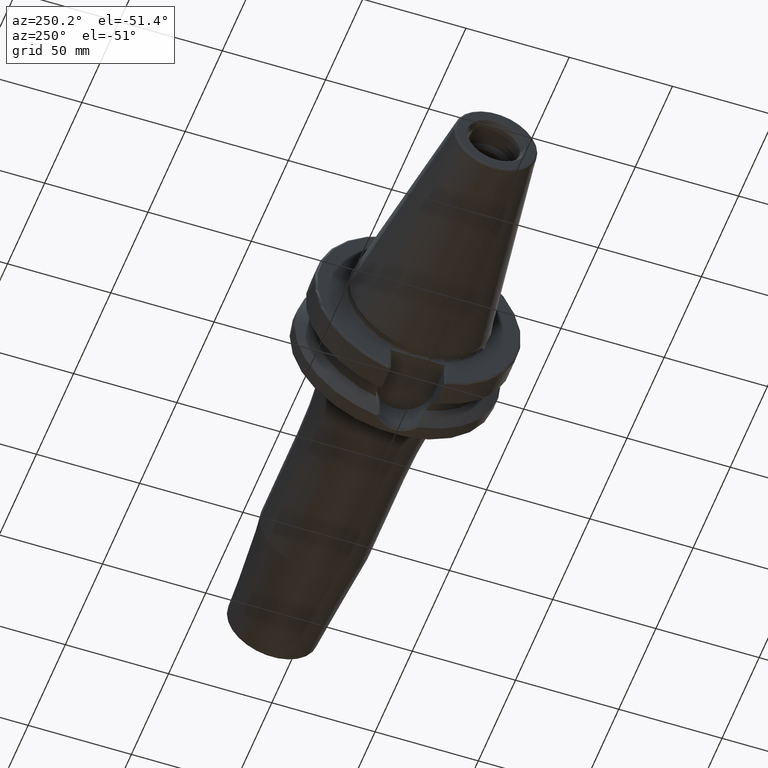
[diagram: clean part render]
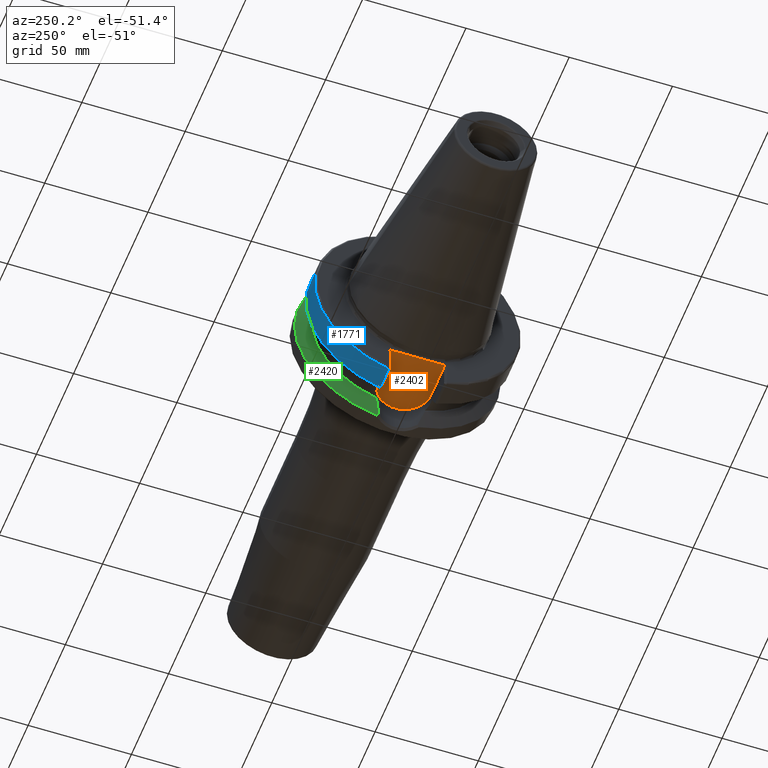
[diagram: same view with three faces highlighted in distinct colors, each labeled with its STEP entity id]
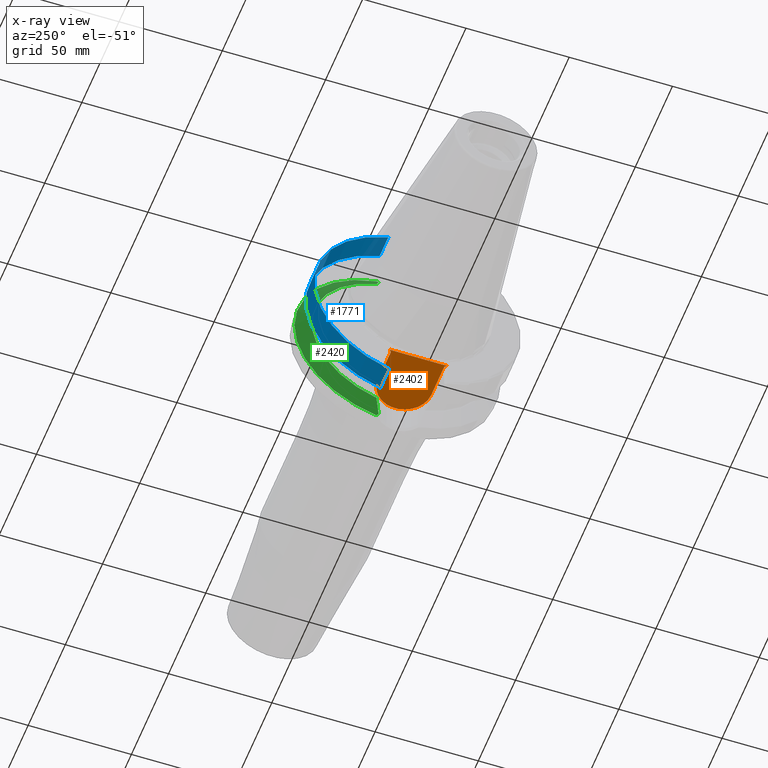
[diagram: x-ray of the same camera — body ghosted, the three highlighted faces saturated]
A machine part, auxiliary view with three faces highlighted in distinct colors.
The next image is the same camera in x-ray (body ghosted, the three faces saturated) — at least one of them is partly hidden behind the body in this view.
Their STEP definitions:

[orange] entity #2402 — the highlighted planar face has unit normal (0, 0, 1).
#116=CARTESIAN_POINT('',(3.E0,5.151759408202E0,-3.52E1));
#117=CARTESIAN_POINT('',(3.E0,4.661054534870E0,-3.52E1));
#118=CARTESIAN_POINT('',(2.985185415827E0,3.679726334622E0,-3.52E1));
#119=CARTESIAN_POINT('',(2.950323079572E0,2.207949548567E0,-3.52E1));
#120=CARTESIAN_POINT('',(2.926055980585E0,7.360772187789E-1,-3.52E1));
#121=CARTESIAN_POINT('',(2.926055295134E0,-7.360096390892E-1,-3.52E1));
#122=CARTESIAN_POINT('',(2.950321957577E0,-2.207902449886E0,-3.52E1));
#123=CARTESIAN_POINT('',(2.985185074233E0,-3.679708044781E0,-3.52E1));
#124=CARTESIAN_POINT('',(3.E0,-4.661048861242E0,-3.52E1));
#125=CARTESIAN_POINT('',(3.E0,-5.151759408202E0,-3.52E1));
#147=DIRECTION('',(7.071067811865E-1,-7.071067811865E-1,0.E0));
#148=VECTOR('',#147,1.414213562373E0);
#149=CARTESIAN_POINT('',(3.E0,1.39025E1,-3.52E1));
#150=LINE('',#149,#148);
#733=DIRECTION('',(-7.071067811865E-1,-7.071067811865E-1,0.E0));
#734=VECTOR('',#733,1.414213562373E0);
#735=CARTESIAN_POINT('',(4.E0,-1.29025E1,-3.52E1));
#736=LINE('',#735,#734);
#737=DIRECTION('',(-1.E0,0.E0,0.E0));
#738=VECTOR('',#737,1.73475E1);
#739=CARTESIAN_POINT('',(2.13475E1,1.29025E1,-3.52E1));
#740=LINE('',#739,#738);
#741=DIRECTION('',(0.E0,-1.E0,0.E0));
#742=VECTOR('',#741,8.750740591798E0);
#743=CARTESIAN_POINT('',(3.E0,1.39025E1,-3.52E1));
#744=LINE('',#743,#742);
#745=DIRECTION('',(0.E0,-1.E0,0.E0));
#746=VECTOR('',#745,8.750740591798E0);
#747=CARTESIAN_POINT('',(3.E0,-5.151759408202E0,-3.52E1));
#748=LINE('',#747,#746);
#749=DIRECTION('',(1.E0,0.E0,0.E0));
#750=VECTOR('',#749,1.73475E1);
#751=CARTESIAN_POINT('',(4.E0,-1.29025E1,-3.52E1));
#752=LINE('',#751,#750);
#753=CARTESIAN_POINT('',(2.13475E1,0.E0,-3.52E1));
#754=DIRECTION('',(0.E0,0.E0,1.E0));
#755=DIRECTION('',(0.E0,-1.E0,0.E0));
#756=AXIS2_PLACEMENT_3D('',#753,#754,#755);
#1334=CARTESIAN_POINT('',(2.13475E1,-1.29025E1,-3.52E1));
#1335=CARTESIAN_POINT('',(2.13475E1,1.29025E1,-3.52E1));
#1336=VERTEX_POINT('',#1334);
#1337=VERTEX_POINT('',#1335);
#1338=CARTESIAN_POINT('',(3.E0,5.151759408202E0,-3.52E1));
#1339=VERTEX_POINT('',#1338);
#1340=CARTESIAN_POINT('',(3.E0,-5.151759408202E0,-3.52E1));
#1341=VERTEX_POINT('',#1340);
#1387=CARTESIAN_POINT('',(4.E0,1.29025E1,-3.52E1));
#1389=VERTEX_POINT('',#1387);
#1391=CARTESIAN_POINT('',(3.E0,1.39025E1,-3.52E1));
#1393=VERTEX_POINT('',#1391);
#1397=CARTESIAN_POINT('',(3.E0,-1.39025E1,-3.52E1));
#1398=VERTEX_POINT('',#1397);
#1399=CARTESIAN_POINT('',(4.E0,-1.29025E1,-3.52E1));
#1401=VERTEX_POINT('',#1399);
#2387=CARTESIAN_POINT('',(0.E0,0.E0,-3.52E1));
#2388=DIRECTION('',(0.E0,0.E0,1.E0));
#2389=DIRECTION('',(1.E0,0.E0,0.E0));
#2390=AXIS2_PLACEMENT_3D('',#2387,#2388,#2389);
#2391=PLANE('',#2390);
#2392=ORIENTED_EDGE('',*,*,#1663,.T.);
#2393=ORIENTED_EDGE('',*,*,#1644,.F.);
#2394=ORIENTED_EDGE('',*,*,#1608,.T.);
#2395=ORIENTED_EDGE('',*,*,#1587,.T.);
#2396=ORIENTED_EDGE('',*,*,#1620,.T.);
#2397=ORIENTED_EDGE('',*,*,#2382,.F.);
#2398=ORIENTED_EDGE('',*,*,#1818,.T.);
#2399=ORIENTED_EDGE('',*,*,#1912,.T.);
#2400=EDGE_LOOP('',(#2392,#2393,#2394,#2395,#2396,#2397,#2398,#2399));
#2401=FACE_OUTER_BOUND('',#2400,.F.);
#2402=ADVANCED_FACE('',(#2401),#2391,.F.);
#126=B_SPLINE_CURVE_WITH_KNOTS('',3,(#116,#117,#118,#119,#120,#121,#122,#123,
#124,#125),.UNSPECIFIED.,.F.,.F.,(4,1,1,1,1,1,1,4),(0.E0,1.428571428571E-1,
2.857142857143E-1,4.285714285714E-1,5.714285714286E-1,7.142857142857E-1,
8.571428571429E-1,1.E0),.UNSPECIFIED.);
#757=CIRCLE('',#756,1.29025E1);
#1587=EDGE_CURVE('',#1339,#1341,#126,.T.);
#1608=EDGE_CURVE('',#1393,#1339,#744,.T.);
#1620=EDGE_CURVE('',#1341,#1398,#748,.T.);
#1644=EDGE_CURVE('',#1393,#1389,#150,.T.);
#1663=EDGE_CURVE('',#1337,#1389,#740,.T.);
#1818=EDGE_CURVE('',#1401,#1336,#752,.T.);
#1912=EDGE_CURVE('',#1336,#1337,#757,.T.);
#2382=EDGE_CURVE('',#1401,#1398,#736,.T.);

[blue] entity #1771 — the highlighted cylindrical surface (partial cylindrical patch) has radius 49.9875 mm, axis along (1, 0, 0).
#227=CARTESIAN_POINT('',(4.E0,0.E0,0.E0));
#228=DIRECTION('',(-1.E0,0.E0,0.E0));
#229=DIRECTION('',(0.E0,2.837968869610E-1,9.588844179312E-1));
#230=AXIS2_PLACEMENT_3D('',#227,#228,#229);
#232=DIRECTION('',(-1.E0,-7.302338022926E-8,-9.708531933347E-8));
#233=VECTOR('',#232,1.166933176412E1);
#234=CARTESIAN_POINT('',(1.566933176383E1,1.386327333875E1,-4.802665727057E1));
#235=LINE('',#234,#233);
#236=CARTESIAN_POINT('',(1.566933176383E1,0.E0,0.E0));
#237=DIRECTION('',(1.E0,0.E0,0.E0));
#238=DIRECTION('',(0.E0,2.773348004750E-1,-9.607733387462E-1));
#239=AXIS2_PLACEMENT_3D('',#236,#237,#238);
#241=DIRECTION('',(9.999999999989E-1,8.887251737038E-7,-1.189757232592E-6));
#242=VECTOR('',#241,1.166933177277E1);
#243=CARTESIAN_POINT('',(3.999999991073E0,1.418628651613E1,4.793224872501E1));
#244=LINE('',#243,#242);
#571=CARTESIAN_POINT('',(3.999999999701E0,1.386327248661E1,-4.802665840350E1));
#1362=CARTESIAN_POINT('',(1.566933176383E1,1.386327333875E1,-4.802665727057E1));
#1363=CARTESIAN_POINT('',(1.566933176383E1,1.418629688696E1,4.793223484134E1));
#1364=VERTEX_POINT('',#1362);
#1365=VERTEX_POINT('',#1363);
#1377=CARTESIAN_POINT('',(4.E0,1.418631682991E1,4.793222893890E1));
#1379=VERTEX_POINT('',#1377);
#1394=VERTEX_POINT('',#571);
#1757=CARTESIAN_POINT('',(-1.0879E2,0.E0,0.E0));
#1758=DIRECTION('',(1.E0,0.E0,0.E0));
#1759=DIRECTION('',(0.E0,-1.E0,0.E0));
#1760=AXIS2_PLACEMENT_3D('',#1757,#1758,#1759);
#1761=CYLINDRICAL_SURFACE('',#1760,4.99875E1);
#1763=ORIENTED_EDGE('',*,*,#1762,.T.);
#1765=ORIENTED_EDGE('',*,*,#1764,.F.);
#1766=ORIENTED_EDGE('',*,*,#1710,.T.);
#1768=ORIENTED_EDGE('',*,*,#1767,.F.);
#1769=EDGE_LOOP('',(#1763,#1765,#1766,#1768));
#1770=FACE_OUTER_BOUND('',#1769,.F.);
#1771=ADVANCED_FACE('',(#1770),#1761,.T.);
#231=CIRCLE('',#230,4.99875E1);
#240=CIRCLE('',#239,4.99875E1);
#1710=EDGE_CURVE('',#1364,#1365,#240,.T.);
#1762=EDGE_CURVE('',#1379,#1394,#231,.T.);
#1764=EDGE_CURVE('',#1364,#1394,#235,.T.);
#1767=EDGE_CURVE('',#1379,#1365,#244,.T.);

[green] entity #2420 — the highlighted conical surface has half-angle 60 deg.
#263=CARTESIAN_POINT('',(3.073066823617E1,0.E0,0.E0));
#264=DIRECTION('',(1.E0,0.E0,0.E0));
#265=DIRECTION('',(0.E0,2.049238320147E-1,-9.787779232657E-1));
#266=AXIS2_PLACEMENT_3D('',#263,#264,#265);
#415=CARTESIAN_POINT('',(2.67375E1,1.172273032403E1,-4.144514217760E1));
#416=CARTESIAN_POINT('',(2.717755273188E1,1.152039825981E1,-4.229446795287E1));
#417=CARTESIAN_POINT('',(2.801804260532E1,1.107404406164E1,-4.392046244152E1));
#418=CARTESIAN_POINT('',(2.916093120674E1,1.029757215552E1,-4.613906421021E1));
#419=CARTESIAN_POINT('',(2.984177307163E1,9.721843848552E0,-4.746425084782E1));
#420=CARTESIAN_POINT('',(3.016210355788E1,9.422169090361E0,-4.808834590435E1));
#485=CARTESIAN_POINT('',(3.006745596523E1,9.509830398822E0,4.790396451831E1));
#486=CARTESIAN_POINT('',(2.975376574683E1,9.797465906135E0,4.729293338983E1));
#487=CARTESIAN_POINT('',(2.908879078217E1,1.035010846105E1,4.599889189585E1));
#488=CARTESIAN_POINT('',(2.797778721927E1,1.109635283633E1,4.384252820130E1));
#489=CARTESIAN_POINT('',(2.716331106798E1,1.152694644153E1,4.226698076473E1));
#490=CARTESIAN_POINT('',(2.67375E1,1.172273032403E1,4.144514217760E1));
#758=CARTESIAN_POINT('',(2.67375E1,0.E0,0.E0));
#759=DIRECTION('',(-1.E0,0.E0,0.E0));
#760=DIRECTION('',(0.E0,2.721714149834E-1,9.622487832499E-1));
#761=AXIS2_PLACEMENT_3D('',#758,#759,#760);
#775=CARTESIAN_POINT('',(3.016210355788E1,9.422169090361E0,-4.808834590435E1));
#776=CARTESIAN_POINT('',(3.022394586618E1,9.512142137117E0,-4.817986780383E1));
#777=CARTESIAN_POINT('',(3.034851502566E1,9.692953240337E0,-4.836399151813E1));
#778=CARTESIAN_POINT('',(3.053803725886E1,9.966778365933E0,-4.864343348084E1));
#779=CARTESIAN_POINT('',(3.066616050581E1,1.015105667945E1,-4.883189001679E1));
#780=CARTESIAN_POINT('',(3.073066823617E1,1.024363005283E1,-4.892666143925E1));
#782=CARTESIAN_POINT('',(3.073066823617E1,0.E0,0.E0));
#783=DIRECTION('',(1.E0,0.E0,0.E0));
#784=DIRECTION('',(0.E0,1.E0,0.E0));
#785=AXIS2_PLACEMENT_3D('',#782,#783,#784);
#968=CARTESIAN_POINT('',(3.073066823617E1,1.046765017837E1,4.887922315251E1));
#969=CARTESIAN_POINT('',(3.065516473864E1,1.035946447073E1,4.876865040800E1));
#970=CARTESIAN_POINT('',(3.050537106240E1,1.014427039488E1,4.854898287946E1));
#971=CARTESIAN_POINT('',(3.028429900742E1,9.824990065200E0,4.822389090934E1));
#972=CARTESIAN_POINT('',(3.013933640756E1,9.614493300520E0,4.801011711517E1));
#973=CARTESIAN_POINT('',(3.006745596523E1,9.509830398822E0,4.790396451831E1));
#1228=CARTESIAN_POINT('',(2.67375E1,1.172273032403E1,4.144514217760E1));
#1229=CARTESIAN_POINT('',(2.67375E1,1.172273032403E1,-4.144514217760E1));
#1230=VERTEX_POINT('',#1228);
#1231=VERTEX_POINT('',#1229);
#1244=CARTESIAN_POINT('',(3.073066823617E1,4.99875E1,0.E0));
#1245=CARTESIAN_POINT('',(3.073066823617E1,1.046765017837E1,4.887922315251E1));
#1246=VERTEX_POINT('',#1244);
#1247=VERTEX_POINT('',#1245);
#1258=CARTESIAN_POINT('',(3.073066823617E1,1.024363005283E1,-4.892666143925E1));
#1259=VERTEX_POINT('',#1258);
#1349=VERTEX_POINT('',#485);
#1357=VERTEX_POINT('',#420);
#2403=CARTESIAN_POINT('',(2.873408411809E1,0.E0,0.E0));
#2404=DIRECTION('',(1.E0,0.E0,0.E0));
#2405=DIRECTION('',(0.E0,-1.E0,0.E0));
#2406=AXIS2_PLACEMENT_3D('',#2403,#2404,#2405);
#2407=CONICAL_SURFACE('',#2406,4.652931486589E1,6.E1);
#2408=ORIENTED_EDGE('',*,*,#1929,.T.);
#2409=ORIENTED_EDGE('',*,*,#1904,.T.);
#2411=ORIENTED_EDGE('',*,*,#2410,.T.);
#2412=ORIENTED_EDGE('',*,*,#1785,.T.);
#2414=ORIENTED_EDGE('',*,*,#2413,.T.);
#2416=ORIENTED_EDGE('',*,*,#2415,.T.);
#2417=ORIENTED_EDGE('',*,*,#1992,.T.);
#2418=EDGE_LOOP('',(#2408,#2409,#2411,#2412,#2414,#2416,#2417));
#2419=FACE_OUTER_BOUND('',#2418,.F.);
#2420=ADVANCED_FACE('',(#2419),#2407,.T.);
#267=CIRCLE('',#266,4.99875E1);
#421=B_SPLINE_CURVE_WITH_KNOTS('',3,(#415,#416,#417,#418,#419,#420),
.UNSPECIFIED.,.F.,.F.,(4,1,1,4),(0.E0,3.333333333333E-1,6.666666666667E-1,1.E0),
.UNSPECIFIED.);
#491=B_SPLINE_CURVE_WITH_KNOTS('',3,(#485,#486,#487,#488,#489,#490),
.UNSPECIFIED.,.F.,.F.,(4,1,1,4),(0.E0,3.333333333333E-1,6.666666666667E-1,1.E0),
.UNSPECIFIED.);
#762=CIRCLE('',#761,4.307112973177E1);
#781=B_SPLINE_CURVE_WITH_KNOTS('',3,(#775,#776,#777,#778,#779,#780),
.UNSPECIFIED.,.F.,.F.,(4,1,1,4),(0.E0,3.333333333333E-1,6.666666666667E-1,1.E0),
.UNSPECIFIED.);
#786=CIRCLE('',#785,4.99875E1);
#974=B_SPLINE_CURVE_WITH_KNOTS('',3,(#968,#969,#970,#971,#972,#973),
.UNSPECIFIED.,.F.,.F.,(4,1,1,4),(0.E0,3.333333333333E-1,6.666666666667E-1,1.E0),
.UNSPECIFIED.);
#1785=EDGE_CURVE('',#1259,#1246,#267,.T.);
#1904=EDGE_CURVE('',#1231,#1357,#421,.T.);
#1929=EDGE_CURVE('',#1230,#1231,#762,.T.);
#1992=EDGE_CURVE('',#1349,#1230,#491,.T.);
#2410=EDGE_CURVE('',#1357,#1259,#781,.T.);
#2413=EDGE_CURVE('',#1246,#1247,#786,.T.);
#2415=EDGE_CURVE('',#1247,#1349,#974,.T.);